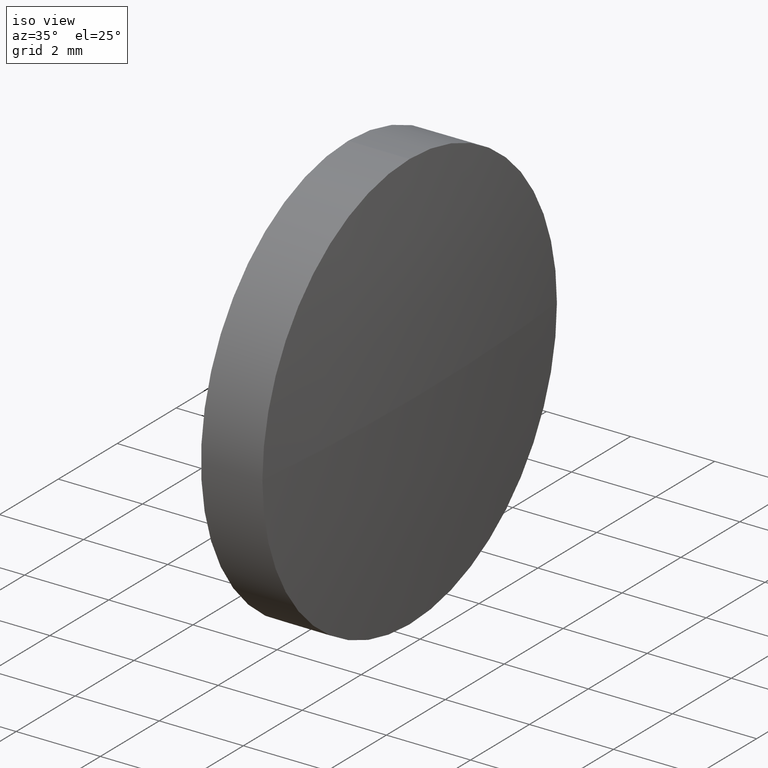
[diagram: clean part render]
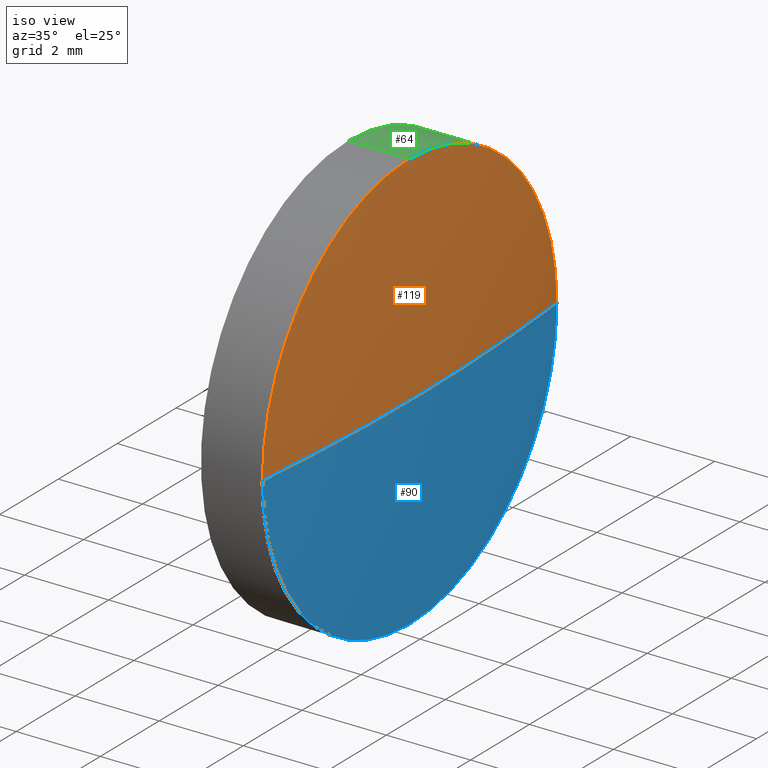
[diagram: same view with three faces highlighted in distinct colors, each labeled with its STEP entity id]
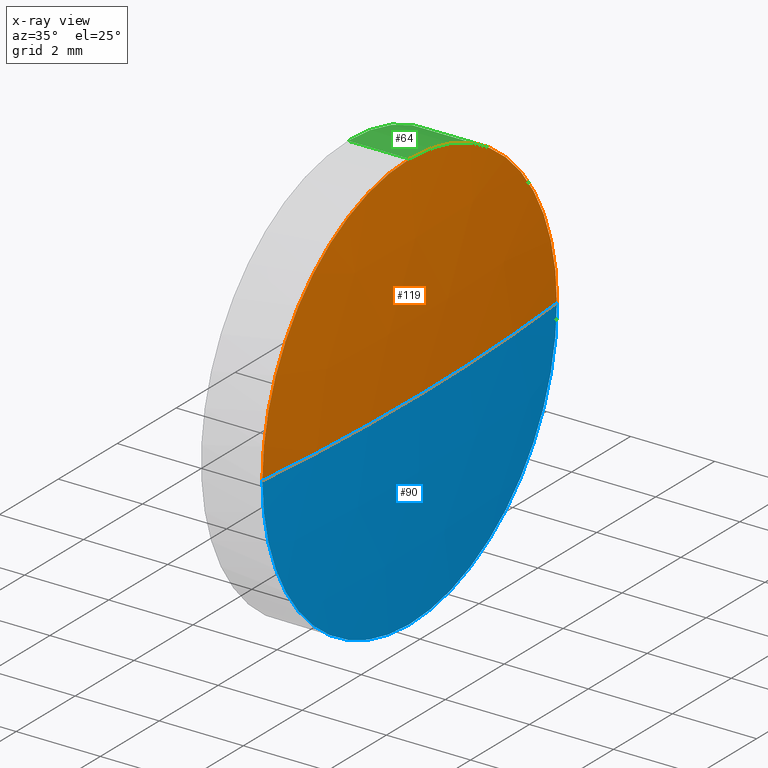
[diagram: x-ray of the same camera — body ghosted, the three highlighted faces saturated]
A machine part, iso view with three faces highlighted in distinct colors.
The next image is the same camera in x-ray (body ghosted, the three faces saturated) — at least one of them is partly hidden behind the body in this view.
Their STEP definitions:

[orange] entity #119 — the highlighted spherical surface has radius 52.2033 mm.
#1 = EDGE_CURVE ( 'NONE', #61, #173, #166, .T. ) ;
#3 = FACE_OUTER_BOUND ( 'NONE', #56, .T. ) ;
#8 = CIRCLE ( 'NONE', #115, 5.000000000000004400 ) ;
#12 = EDGE_CURVE ( 'NONE', #78, #118, #33, .T. ) ;
#15 = DIRECTION ( 'NONE',  ( 0.0000000000000000000, 1.000000000000000000, 0.0000000000000000000 ) ) ;
#18 = EDGE_CURVE ( 'NONE', #173, #118, #8, .T. ) ;
#20 = DIRECTION ( 'NONE',  ( -0.0000000000000000000, 0.0000000000000000000, -1.000000000000000000 ) ) ;
#30 = DIRECTION ( 'NONE',  ( 1.000000000000000000, 0.0000000000000000000, 0.0000000000000000000 ) ) ;
#33 = CIRCLE ( 'NONE', #77, 52.20333333333326900 ) ;
#36 = SPHERICAL_SURFACE ( 'NONE', #75, 52.20333333333326900 ) ;
#44 = DIRECTION ( 'NONE',  ( -1.000000000000000000, -0.0000000000000000000, -0.0000000000000000000 ) ) ;
#46 = DIRECTION ( 'NONE',  ( -0.0000000000000000000, 0.0000000000000000000, 1.000000000000000000 ) ) ;
#49 = ORIENTED_EDGE ( 'NONE', *, *, #18, .F. ) ;
#50 = CARTESIAN_POINT ( 'NONE',  ( 811.7429908174219700, 272.0667611182082100, 0.0000000000000000000 ) ) ;
#52 = ORIENTED_EDGE ( 'NONE', *, *, #1, .F. ) ;
#56 = EDGE_LOOP ( 'NONE', ( #127, #107, #49, #52 ) ) ;
#59 = CARTESIAN_POINT ( 'NONE',  ( 863.7063241507552200, 272.0667611182083200, 5.000000000000004400 ) ) ;
#60 = DIRECTION ( 'NONE',  ( 0.0000000000000000000, 1.224646799147353200E-016, -1.000000000000000000 ) ) ;
#61 = VERTEX_POINT ( 'NONE', #135 ) ;
#70 = DIRECTION ( 'NONE',  ( 0.0000000000000000000, 0.0000000000000000000, 1.000000000000000000 ) ) ;
#75 = AXIS2_PLACEMENT_3D ( 'NONE', #103, #20, #15 ) ;
#77 = AXIS2_PLACEMENT_3D ( 'NONE', #182, #46, #30 ) ;
#78 = VERTEX_POINT ( 'NONE', #125 ) ;
#88 = DIRECTION ( 'NONE',  ( 0.0000000000000000000, 1.000000000000000000, 1.224646799147353200E-016 ) ) ;
#94 = AXIS2_PLACEMENT_3D ( 'NONE', #159, #143, #70 ) ;
#98 = DIRECTION ( 'NONE',  ( 0.0000000000000000000, 0.0000000000000000000, 1.000000000000000000 ) ) ;
#103 = CARTESIAN_POINT ( 'NONE',  ( 811.7429908174219700, 272.0667611182082100, 0.0000000000000000000 ) ) ;
#107 = ORIENTED_EDGE ( 'NONE', *, *, #12, .T. ) ;
#111 = CARTESIAN_POINT ( 'NONE',  ( 863.7063241507552200, 272.0667611182083200, 0.0000000000000000000 ) ) ;
#115 = AXIS2_PLACEMENT_3D ( 'NONE', #111, #44, #98 ) ;
#118 = VERTEX_POINT ( 'NONE', #133 ) ;
#119 = ADVANCED_FACE ( 'NONE', ( #3 ), #36, .T. ) ;
#121 = AXIS2_PLACEMENT_3D ( 'NONE', #50, #60, #88 ) ;
#125 = CARTESIAN_POINT ( 'NONE',  ( 863.9463241507552300, 272.0667611182082100, 0.0000000000000000000 ) ) ;
#127 = ORIENTED_EDGE ( 'NONE', *, *, #171, .F. ) ;
#133 = CARTESIAN_POINT ( 'NONE',  ( 863.7063241507552200, 277.0667611182083800, 0.0000000000000000000 ) ) ;
#135 = CARTESIAN_POINT ( 'NONE',  ( 863.7063241507552200, 267.0667611182081500, -6.123233995736804700E-016 ) ) ;
#143 = DIRECTION ( 'NONE',  ( -1.000000000000000000, -0.0000000000000000000, -0.0000000000000000000 ) ) ;
#159 = CARTESIAN_POINT ( 'NONE',  ( 863.7063241507552200, 272.0667611182083200, 0.0000000000000000000 ) ) ;
#166 = CIRCLE ( 'NONE', #94, 5.000000000000004400 ) ;
#171 = EDGE_CURVE ( 'NONE', #78, #61, #177, .T. ) ;
#173 = VERTEX_POINT ( 'NONE', #59 ) ;
#177 = CIRCLE ( 'NONE', #121, 52.20333333333326900 ) ;
#182 = CARTESIAN_POINT ( 'NONE',  ( 811.7429908174219700, 272.0667611182082100, 0.0000000000000000000 ) ) ;

[blue] entity #90 — the highlighted spherical surface has radius 52.2033 mm.
#12 = EDGE_CURVE ( 'NONE', #78, #118, #33, .T. ) ;
#13 = ORIENTED_EDGE ( 'NONE', *, *, #12, .F. ) ;
#24 = EDGE_CURVE ( 'NONE', #118, #160, #38, .T. ) ;
#30 = DIRECTION ( 'NONE',  ( 1.000000000000000000, 0.0000000000000000000, 0.0000000000000000000 ) ) ;
#31 = AXIS2_PLACEMENT_3D ( 'NONE', #129, #72, #156 ) ;
#33 = CIRCLE ( 'NONE', #77, 52.20333333333326900 ) ;
#38 = CIRCLE ( 'NONE', #151, 5.000000000000004400 ) ;
#45 = ORIENTED_EDGE ( 'NONE', *, *, #122, .F. ) ;
#46 = DIRECTION ( 'NONE',  ( -0.0000000000000000000, 0.0000000000000000000, 1.000000000000000000 ) ) ;
#48 = CARTESIAN_POINT ( 'NONE',  ( 811.7429908174219700, 272.0667611182082100, 0.0000000000000000000 ) ) ;
#50 = CARTESIAN_POINT ( 'NONE',  ( 811.7429908174219700, 272.0667611182082100, 0.0000000000000000000 ) ) ;
#60 = DIRECTION ( 'NONE',  ( 0.0000000000000000000, 1.224646799147353200E-016, -1.000000000000000000 ) ) ;
#61 = VERTEX_POINT ( 'NONE', #135 ) ;
#66 = FACE_OUTER_BOUND ( 'NONE', #112, .T. ) ;
#72 = DIRECTION ( 'NONE',  ( -1.000000000000000000, -0.0000000000000000000, -0.0000000000000000000 ) ) ;
#76 = SPHERICAL_SURFACE ( 'NONE', #79, 52.20333333333326900 ) ;
#77 = AXIS2_PLACEMENT_3D ( 'NONE', #182, #46, #30 ) ;
#78 = VERTEX_POINT ( 'NONE', #125 ) ;
#79 = AXIS2_PLACEMENT_3D ( 'NONE', #48, #169, #186 ) ;
#88 = DIRECTION ( 'NONE',  ( 0.0000000000000000000, 1.000000000000000000, 1.224646799147353200E-016 ) ) ;
#90 = ADVANCED_FACE ( 'NONE', ( #66 ), #76, .T. ) ;
#91 = ORIENTED_EDGE ( 'NONE', *, *, #171, .T. ) ;
#102 = CIRCLE ( 'NONE', #31, 5.000000000000004400 ) ;
#112 = EDGE_LOOP ( 'NONE', ( #13, #91, #45, #137 ) ) ;
#114 = CARTESIAN_POINT ( 'NONE',  ( 863.7063241507552200, 272.0667611182083200, -5.000000000000004400 ) ) ;
#118 = VERTEX_POINT ( 'NONE', #133 ) ;
#121 = AXIS2_PLACEMENT_3D ( 'NONE', #50, #60, #88 ) ;
#122 = EDGE_CURVE ( 'NONE', #160, #61, #102, .T. ) ;
#125 = CARTESIAN_POINT ( 'NONE',  ( 863.9463241507552300, 272.0667611182082100, 0.0000000000000000000 ) ) ;
#126 = DIRECTION ( 'NONE',  ( 0.0000000000000000000, 0.0000000000000000000, 1.000000000000000000 ) ) ;
#129 = CARTESIAN_POINT ( 'NONE',  ( 863.7063241507552200, 272.0667611182083200, 0.0000000000000000000 ) ) ;
#133 = CARTESIAN_POINT ( 'NONE',  ( 863.7063241507552200, 277.0667611182083800, 0.0000000000000000000 ) ) ;
#135 = CARTESIAN_POINT ( 'NONE',  ( 863.7063241507552200, 267.0667611182081500, -6.123233995736804700E-016 ) ) ;
#137 = ORIENTED_EDGE ( 'NONE', *, *, #24, .F. ) ;
#151 = AXIS2_PLACEMENT_3D ( 'NONE', #153, #167, #126 ) ;
#153 = CARTESIAN_POINT ( 'NONE',  ( 863.7063241507552200, 272.0667611182083200, 0.0000000000000000000 ) ) ;
#156 = DIRECTION ( 'NONE',  ( 0.0000000000000000000, 0.0000000000000000000, 1.000000000000000000 ) ) ;
#160 = VERTEX_POINT ( 'NONE', #114 ) ;
#167 = DIRECTION ( 'NONE',  ( -1.000000000000000000, -0.0000000000000000000, -0.0000000000000000000 ) ) ;
#169 = DIRECTION ( 'NONE',  ( -0.0000000000000000000, 0.0000000000000000000, -1.000000000000000000 ) ) ;
#171 = EDGE_CURVE ( 'NONE', #78, #61, #177, .T. ) ;
#177 = CIRCLE ( 'NONE', #121, 52.20333333333326900 ) ;
#182 = CARTESIAN_POINT ( 'NONE',  ( 811.7429908174219700, 272.0667611182082100, 0.0000000000000000000 ) ) ;
#186 = DIRECTION ( 'NONE',  ( 0.0000000000000000000, 1.000000000000000000, 0.0000000000000000000 ) ) ;

[green] entity #64 — the highlighted cylindrical surface (partial cylindrical patch) has radius 5 mm, axis along (-1, -0, -0).
#8 = CIRCLE ( 'NONE', #115, 5.000000000000004400 ) ;
#10 = CARTESIAN_POINT ( 'NONE',  ( 861.0148035766878800, 272.0667611182083200, -5.000000000000004400 ) ) ;
#16 = EDGE_CURVE ( 'NONE', #160, #42, #150, .T. ) ;
#18 = EDGE_CURVE ( 'NONE', #173, #118, #8, .T. ) ;
#22 = CIRCLE ( 'NONE', #131, 5.000000000000004400 ) ;
#23 = EDGE_LOOP ( 'NONE', ( #134, #67, #54, #132, #183 ) ) ;
#24 = EDGE_CURVE ( 'NONE', #118, #160, #38, .T. ) ;
#27 = DIRECTION ( 'NONE',  ( 0.0000000000000000000, 0.0000000000000000000, 1.000000000000000000 ) ) ;
#29 = CARTESIAN_POINT ( 'NONE',  ( 861.0148035766878800, 272.0667611182083200, 5.000000000000004400 ) ) ;
#37 = EDGE_CURVE ( 'NONE', #173, #154, #144, .T. ) ;
#38 = CIRCLE ( 'NONE', #151, 5.000000000000004400 ) ;
#42 = VERTEX_POINT ( 'NONE', #168 ) ;
#44 = DIRECTION ( 'NONE',  ( -1.000000000000000000, -0.0000000000000000000, -0.0000000000000000000 ) ) ;
#54 = ORIENTED_EDGE ( 'NONE', *, *, #63, .F. ) ;
#59 = CARTESIAN_POINT ( 'NONE',  ( 863.7063241507552200, 272.0667611182083200, 5.000000000000004400 ) ) ;
#63 = EDGE_CURVE ( 'NONE', #154, #42, #22, .T. ) ;
#64 = ADVANCED_FACE ( 'NONE', ( #104 ), #148, .T. ) ;
#67 = ORIENTED_EDGE ( 'NONE', *, *, #16, .T. ) ;
#81 = VECTOR ( 'NONE', #136, 1000.000000000000000 ) ;
#83 = CARTESIAN_POINT ( 'NONE',  ( 861.0148035766878800, 272.0667611182083200, 0.0000000000000000000 ) ) ;
#96 = DIRECTION ( 'NONE',  ( -1.000000000000000000, -0.0000000000000000000, -0.0000000000000000000 ) ) ;
#98 = DIRECTION ( 'NONE',  ( 0.0000000000000000000, 0.0000000000000000000, 1.000000000000000000 ) ) ;
#99 = DIRECTION ( 'NONE',  ( -1.000000000000000000, -0.0000000000000000000, -0.0000000000000000000 ) ) ;
#104 = FACE_OUTER_BOUND ( 'NONE', #23, .T. ) ;
#106 = VECTOR ( 'NONE', #99, 1000.000000000000000 ) ;
#109 = DIRECTION ( 'NONE',  ( -1.000000000000000000, -0.0000000000000000000, -0.0000000000000000000 ) ) ;
#111 = CARTESIAN_POINT ( 'NONE',  ( 863.7063241507552200, 272.0667611182083200, 0.0000000000000000000 ) ) ;
#114 = CARTESIAN_POINT ( 'NONE',  ( 863.7063241507552200, 272.0667611182083200, -5.000000000000004400 ) ) ;
#115 = AXIS2_PLACEMENT_3D ( 'NONE', #111, #44, #98 ) ;
#116 = CARTESIAN_POINT ( 'NONE',  ( 862.2463241507551900, 272.0667611182083200, 5.000000000000004400 ) ) ;
#118 = VERTEX_POINT ( 'NONE', #133 ) ;
#126 = DIRECTION ( 'NONE',  ( 0.0000000000000000000, 0.0000000000000000000, 1.000000000000000000 ) ) ;
#131 = AXIS2_PLACEMENT_3D ( 'NONE', #180, #109, #27 ) ;
#132 = ORIENTED_EDGE ( 'NONE', *, *, #37, .F. ) ;
#133 = CARTESIAN_POINT ( 'NONE',  ( 863.7063241507552200, 277.0667611182083800, 0.0000000000000000000 ) ) ;
#134 = ORIENTED_EDGE ( 'NONE', *, *, #24, .T. ) ;
#136 = DIRECTION ( 'NONE',  ( -1.000000000000000000, -0.0000000000000000000, -0.0000000000000000000 ) ) ;
#144 = LINE ( 'NONE', #29, #106 ) ;
#148 = CYLINDRICAL_SURFACE ( 'NONE', #172, 5.000000000000004400 ) ;
#150 = LINE ( 'NONE', #10, #81 ) ;
#151 = AXIS2_PLACEMENT_3D ( 'NONE', #153, #167, #126 ) ;
#153 = CARTESIAN_POINT ( 'NONE',  ( 863.7063241507552200, 272.0667611182083200, 0.0000000000000000000 ) ) ;
#154 = VERTEX_POINT ( 'NONE', #116 ) ;
#160 = VERTEX_POINT ( 'NONE', #114 ) ;
#167 = DIRECTION ( 'NONE',  ( -1.000000000000000000, -0.0000000000000000000, -0.0000000000000000000 ) ) ;
#168 = CARTESIAN_POINT ( 'NONE',  ( 862.2463241507551900, 272.0667611182083200, -5.000000000000004400 ) ) ;
#172 = AXIS2_PLACEMENT_3D ( 'NONE', #83, #96, #181 ) ;
#173 = VERTEX_POINT ( 'NONE', #59 ) ;
#180 = CARTESIAN_POINT ( 'NONE',  ( 862.2463241507551900, 272.0667611182083200, 0.0000000000000000000 ) ) ;
#181 = DIRECTION ( 'NONE',  ( 0.0000000000000000000, 0.0000000000000000000, 1.000000000000000000 ) ) ;
#183 = ORIENTED_EDGE ( 'NONE', *, *, #18, .T. ) ;